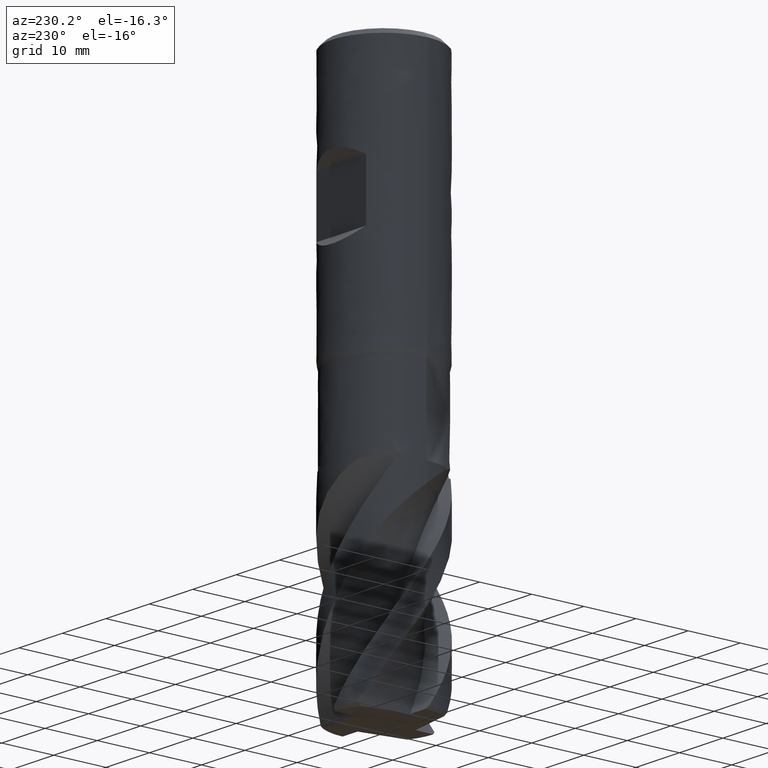
[diagram: clean part render]
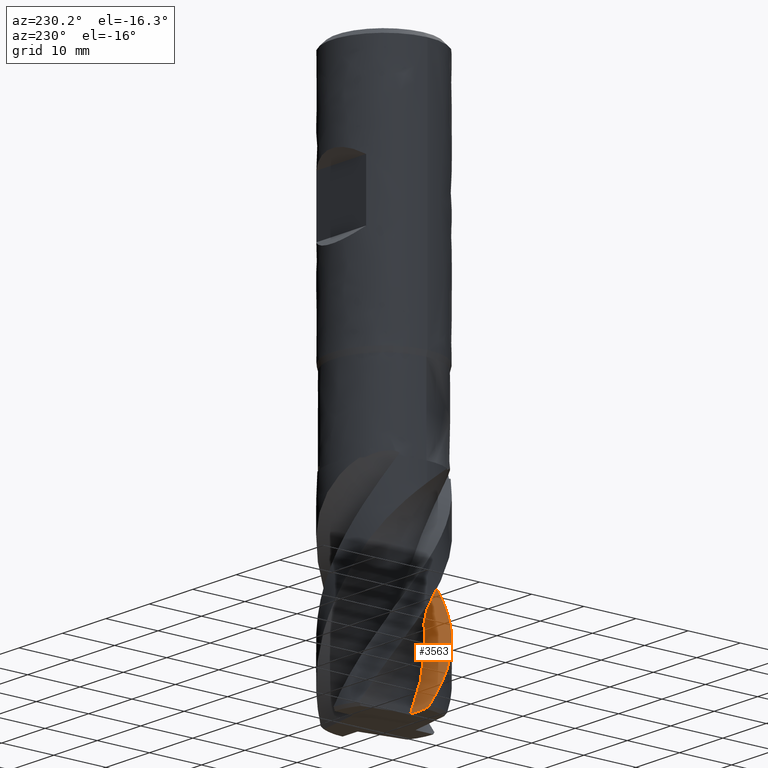
[diagram: same view with one face highlighted and labeled with its STEP entity id]
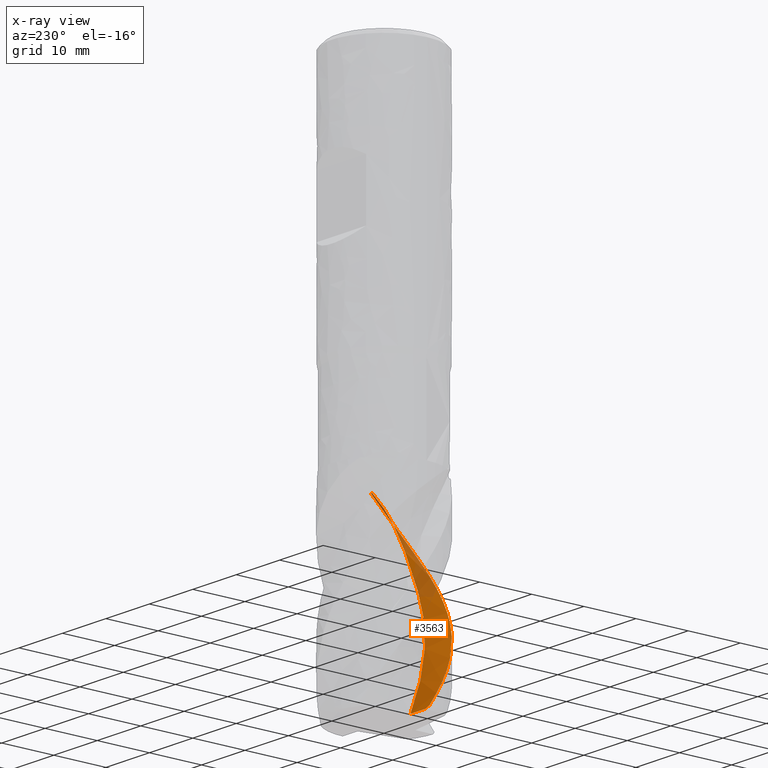
[diagram: x-ray of the same camera — body ghosted, the highlighted face saturated]
A machine part, auxiliary view. The second image highlights one B-rep face of the part: STEP entity #3563.
The next image is the same camera in x-ray: the body ghosted, the highlighted face saturated — about 20% of this face is hidden behind the body in this view.
In plain terms, the highlighted face is a freeform B-spline surface patch.
Its self-contained STEP definition (entity closure, byte-faithful):
#1973 = VERTEX_POINT('', #1974);
#1974 = CARTESIAN_POINT('', (8.75807935322569, -4.82659777095645, -66.));
#2043 = VERTEX_POINT('', #2044);
#2044 = CARTESIAN_POINT('', (8.24481654069184, -4.54373744884961, -66.));
#2050 = EDGE_CURVE('', #2043, #1973, #2051, .T.);
#2051 = LINE('', #2052, #2053);
#2052 = CARTESIAN_POINT('', (8.24481654069184, -4.54373744884961, -66.));
#2053 = VECTOR('', #2054, 0.58604494414042);
#2054 = DIRECTION('', (0.513262812533851, -0.282860322106846, 0.));
#2064 = EDGE_CURVE('', #2065, #1973, #2067, .T.);
#2065 = VERTEX_POINT('', #2066);
#2066 = CARTESIAN_POINT('', (-9.99273122246887, -0.381212165986003, -103.5));
#2067 = B_SPLINE_CURVE_WITH_KNOTS('', 3, (#2068, #2069, #2070, #2071, #2072, #2073, #2074, #2075, #2076, #2077, #2078, #2079, #2080, #2081, #2082, #2083, #2084, #2085, #2086, #2087, #2088, #2089, #2090, #2091, #2092, #2093, #2094, #2095, #2096, #2097, #2098, #2099, #2100, #2101, #2102, #2103, #2104, #2105, #2106, #2107, #2108, #2109, #2110, #2111, #2112, #2113, #2114, #2115, #2116, #2117, #2118, #2119, #2120, #2121, #2122, #2123, #2124, #2125, #2126, #2127, #2128, #2129, #2130, #2131, #2132, #2133, #2134, #2135, #2136, #2137, #2138, #2139, #2140, #2141, #2142, #2143, #2144, #2145, #2146, #2147, #2148, #2149, #2150, #2151, #2152, #2153, #2154, #2155, #2156, #2157, #2158, #2159, #2160, #2161, #2162, #2163, #2164, #2165, #2166, #2167, #2168, #2169, #2170, #2171, #2172, #2173, #2174, #2175, #2176, #2177, #2178, #2179, #2180, #2181, #2182, #2183, #2184, #2185, #2186, #2187, #2188, #2189, #2190, #2191, #2192, #2193, #2194, #2195, #2196, #2197, #2198, #2199, #2200, #2201, #2202, #2203, #2204, #2205, #2206, #2207, #2208, #2209, #2210, #2211, #2212, #2213, #2214, #2215, #2216, #2217, #2218, #2219, #2220, #2221, #2222, #2223, #2224, #2225, #2226, #2227, #2228, #2229, #2230, #2231, #2232, #2233, #2234, #2235, #2236, #2237, #2238, #2239), .UNSPECIFIED., .F., .U., (4, 3, 3, 3, 3, 3, 3, 3, 3, 3, 3, 3, 3, 3, 3, 3, 3, 3, 3, 3, 3, 3, 3, 3, 3, 3, 3, 3, 3, 3, 3, 3, 3, 3, 3, 3, 3, 3, 3, 3, 3, 3, 3, 3, 3, 3, 3, 3, 3, 3, 3, 3, 3, 3, 3, 3, 3, 4), (0., 1.5001938970399, 2.9998743749866, 4.49905475742761, 5.49770750414474, 6.49622074612984, 7.49459598662728, 8.49283549884522, 9.49094023268371, 10.4889117743659, 11.4867509465896, 12.4844588771655, 13.4820357447394, 14.4794818466203, 15.4767982398034, 16.4739827422443, 17.4710358254384, 18.1358123858625, 18.5790458597469, 19.5757821239086, 20.2404083912893, 21.2369224862458, 22.2332867542758, 23.2295110322367, 24.2256323112435, 25.221568793695, 25.8857991145401, 26.3287939679017, 26.7718309210119, 26.9031704834833, 27.3469670084974, 27.7907324079612, 28.2344483481404, 29.2338625427268, 29.6775540322148, 30.1212449151081, 31.120482271153, 31.7861601175668, 32.7850812661083, 33.7838565024265, 34.7824711915548, 35.4478980948708, 36.1132791624477, 36.7786120260139, 37.4439032928942, 38.1091490221567, 38.7743474531605, 39.4395054949006, 40.1046163156367, 40.769680915831, 41.4347063498659, 42.0996854451411, 42.764622271235, 43.4295220463284, 44.094368312011, 44.7591675688587, 45.4239289212548, 45.6286047567852), .UNSPECIFIED.);
#2068 = CARTESIAN_POINT('', (-9.99273122246888, -0.381212165986001, -103.5));
#2069 = CARTESIAN_POINT('', (-9.98187011040254, -0.6659149728215, -103.08903651677));
#2070 = CARTESIAN_POINT('', (-9.95882652936518, -0.950235794316247, -102.677950220319));
#2071 = CARTESIAN_POINT('', (-9.92369787495385, -1.23297221649103, -102.266987047104));
#2072 = CARTESIAN_POINT('', (-9.88858124280307, -1.5156118763221, -101.856164519934));
#2073 = CARTESIAN_POINT('', (-9.84136711242229, -1.7968337577352, -101.445220699274));
#2074 = CARTESIAN_POINT('', (-9.78225584084703, -2.07544469071455, -101.034397976449));
#2075 = CARTESIAN_POINT('', (-9.72316428099148, -2.35396271585288, -100.62371224987));
#2076 = CARTESIAN_POINT('', (-9.65214847773069, -2.63003691110683, -100.212905107744));
#2077 = CARTESIAN_POINT('', (-9.56950910534147, -2.90249814518237, -99.8022197307876));
#2078 = CARTESIAN_POINT('', (-9.51446033523343, -3.08399342284899, -99.5286488619733));
#2079 = CARTESIAN_POINT('', (-9.45423873593147, -3.26394558711793, -99.2550419580643));
#2080 = CARTESIAN_POINT('', (-9.38895749189167, -3.44201644613316, -98.9814710321316));
#2081 = CARTESIAN_POINT('', (-9.32368536718037, -3.62006242990767, -98.7079383221241));
#2082 = CARTESIAN_POINT('', (-9.25333788134955, -3.79627433708064, -98.4343697463546));
#2083 = CARTESIAN_POINT('', (-9.17804737976399, -3.97032067908969, -98.1608369745504));
#2084 = CARTESIAN_POINT('', (-9.10276728385037, -4.14434296668153, -97.8873420068813));
#2085 = CARTESIAN_POINT('', (-9.02252581558251, -4.31624591259249, -97.6138110159751));
#2086 = CARTESIAN_POINT('', (-8.9374736079491, -4.48570680129824, -97.3403160874379));
#2087 = CARTESIAN_POINT('', (-8.85243296309222, -4.65514465193781, -97.0668583403077));
#2088 = CARTESIAN_POINT('', (-8.76256062864426, -4.8221854301996, -96.7933647961833));
#2089 = CARTESIAN_POINT('', (-8.66802559588746, -4.98651504249609, -96.5199070442787));
#2090 = CARTESIAN_POINT('', (-8.57350332687959, -5.15082246765356, -96.246486213566));
#2091 = CARTESIAN_POINT('', (-8.4742948242878, -5.31246257889582, -95.9730294587141));
#2092 = CARTESIAN_POINT('', (-8.37058631650313, -5.47113194119558, -95.6996086861888));
#2093 = CARTESIAN_POINT('', (-8.26689164810756, -5.62978012985115, -95.4262244003177));
#2094 = CARTESIAN_POINT('', (-8.15867108426632, -5.7854997963694, -95.1528042599496));
#2095 = CARTESIAN_POINT('', (-8.0461279915139, -5.9379983449119, -94.8794198332813));
#2096 = CARTESIAN_POINT('', (-7.93359982630963, -6.09047666627412, -94.606071667916));
#2097 = CARTESIAN_POINT('', (-7.81672073179948, -6.23977477843776, -94.3326876077699));
#2098 = CARTESIAN_POINT('', (-7.6957099448647, -6.38561261309442, -94.05933954872));
#2099 = CARTESIAN_POINT('', (-7.57471507397682, -6.53143126630554, -93.7860274420067));
#2100 = CARTESIAN_POINT('', (-7.44955801467691, -6.67382860271252, -93.5126795460522));
#2101 = CARTESIAN_POINT('', (-7.3204737675505, -6.81253725263979, -93.2393674283905));
#2102 = CARTESIAN_POINT('', (-7.19140647745973, -6.95122768123043, -92.9660912141285));
#2103 = CARTESIAN_POINT('', (-7.05837912382122, -7.0862668274403, -92.692779252469));
#2104 = CARTESIAN_POINT('', (-6.92164145335852, -7.21740116601182, -92.4195030472128));
#2105 = CARTESIAN_POINT('', (-6.78492170692434, -7.3485183150582, -92.1462626639103));
#2106 = CARTESIAN_POINT('', (-6.64445698266512, -7.47576587394979, -91.8729862856165));
#2107 = CARTESIAN_POINT('', (-6.50051037067061, -7.59890550808495, -91.5997459037057));
#2108 = CARTESIAN_POINT('', (-6.35658247760994, -7.72202912904249, -91.3265410541952));
#2109 = CARTESIAN_POINT('', (-6.20913551709407, -7.84107843747769, -91.0533009823612));
#2110 = CARTESIAN_POINT('', (-6.05844670328949, -7.95582953207273, -90.7800966231023));
#2111 = CARTESIAN_POINT('', (-5.90777781742318, -8.07056545133611, -90.5069283939281));
#2112 = CARTESIAN_POINT('', (-5.75382865754208, -8.1810341492072, -90.2337241786196));
#2113 = CARTESIAN_POINT('', (-5.59689072281261, -8.28702686353158, -89.9605532524203));
#2114 = CARTESIAN_POINT('', (-5.43997347098095, -8.39300560904413, -89.6874183274999));
#2115 = CARTESIAN_POINT('', (-5.28002782108504, -8.49453711294139, -89.414244742144));
#2116 = CARTESIAN_POINT('', (-5.1173464197838, -8.59143559714707, -89.1411098833958));
#2117 = CARTESIAN_POINT('', (-5.00887999585427, -8.65604182737323, -88.9589995675149));
#2118 = CARTESIAN_POINT('', (-4.8991817897135, -8.71859845683831, -88.7768800913627));
#2119 = CARTESIAN_POINT('', (-4.78833857433149, -8.77905539893495, -88.5947761731993));
#2120 = CARTESIAN_POINT('', (-4.71443491055167, -8.81936449233744, -88.4733601109301));
#2121 = CARTESIAN_POINT('', (-4.64001632529938, -8.85874347881304, -88.3519440302105));
#2122 = CARTESIAN_POINT('', (-4.56511329202039, -8.89717599190995, -88.2305318716323));
#2123 = CARTESIAN_POINT('', (-4.39667256277991, -8.98360240549022, -87.9575021739777));
#2124 = CARTESIAN_POINT('', (-4.22576031910592, -9.06525110959404, -87.684432004459));
#2125 = CARTESIAN_POINT('', (-4.05271875871044, -9.14196207948799, -87.4113769449808));
#2126 = CARTESIAN_POINT('', (-3.93733420762852, -9.19311314865336, -87.2293031392053));
#2127 = CARTESIAN_POINT('', (-3.82098477926707, -9.2420779037201, -87.0472109123807));
#2128 = CARTESIAN_POINT('', (-3.70375166272943, -9.28882250992174, -86.8651333590343));
#2129 = CARTESIAN_POINT('', (-3.52797700746963, -9.35890950652317, -86.5921335436643));
#2130 = CARTESIAN_POINT('', (-3.35017183783183, -9.42402080062988, -86.3191108523517));
#2131 = CARTESIAN_POINT('', (-3.17067698809457, -9.48402907192757, -86.0461302266472));
#2132 = CARTESIAN_POINT('', (-2.99120912559393, -9.54402832091951, -85.7731906438626));
#2133 = CARTESIAN_POINT('', (-2.8100060437996, -9.59894112192461, -85.5002210868297));
#2134 = CARTESIAN_POINT('', (-2.62743307202509, -9.64865770208627, -85.2272741853356));
#2135 = CARTESIAN_POINT('', (-2.44488575191609, -9.69836729702404, -84.9543656331248));
#2136 = CARTESIAN_POINT('', (-2.2609179289437, -9.74289711259459, -84.6814109802502));
#2137 = CARTESIAN_POINT('', (-2.07584601200978, -9.78217068622415, -84.4085014389102));
#2138 = CARTESIAN_POINT('', (-1.89079322953614, -9.82144019938549, -84.135620113503));
#2139 = CARTESIAN_POINT('', (-1.70458498029373, -9.85546533151179, -83.8627148261836));
#2140 = CARTESIAN_POINT('', (-1.51754958450637, -9.88418146629069, -83.5898705683236));
#2141 = CARTESIAN_POINT('', (-1.33054888680006, -9.91289227376367, -83.3170769274719));
#2142 = CARTESIAN_POINT('', (-1.1426872519475, -9.93629917091783, -83.0442624804047));
#2143 = CARTESIAN_POINT('', (-0.954406890301328, -9.95435118366563, -82.7714354799966));
#2144 = CARTESIAN_POINT('', (-0.828835102111357, -9.96639080108164, -82.5894761189235));
#2145 = CARTESIAN_POINT('', (-0.703058995916467, -9.97605127959484, -82.4074847189199));
#2146 = CARTESIAN_POINT('', (-0.577209322011064, -9.98332757143546, -82.2254645260461));
#2147 = CARTESIAN_POINT('', (-0.493276451005719, -9.9881803457455, -82.1040698740398));
#2148 = CARTESIAN_POINT('', (-0.409309333992039, -9.99197336499974, -81.9826519122623));
#2149 = CARTESIAN_POINT('', (-0.325295163266469, -9.99470775244356, -81.861247299368));
#2150 = CARTESIAN_POINT('', (-0.241273008304873, -9.99744239974823, -81.7398311488595));
#2151 = CARTESIAN_POINT('', (-0.157198593194564, -9.9991181909217, -81.618422668708));
#2152 = CARTESIAN_POINT('', (-0.073081913532351, -9.99973294812988, -81.4970427333779));
#2153 = CARTESIAN_POINT('', (-0.048145285050629, -9.99991519464946, -81.4610593069681));
#2154 = CARTESIAN_POINT('', (-0.0232048666533307, -10.0000041856459, -81.4250779134358));
#2155 = CARTESIAN_POINT('', (0.00173864458909561, -9.99999984885575, -81.3890987964635));
#2156 = CARTESIAN_POINT('', (0.0860227963156528, -9.99998519483709, -81.2675253209245));
#2157 = CARTESIAN_POINT('', (0.170347092871053, -9.99890476216976, -81.1459751182408));
#2158 = CARTESIAN_POINT('', (0.254667676294169, -9.99675669278045, -81.0244458896136));
#2159 = CARTESIAN_POINT('', (0.338982345915747, -9.99460877404542, -80.9029251844064));
#2160 = CARTESIAN_POINT('', (0.423297672962246, -9.99139303662583, -80.7814191244146));
#2161 = CARTESIAN_POINT('', (0.507543753566425, -9.98711166144725, -80.659907287165));
#2162 = CARTESIAN_POINT('', (0.591780444635337, -9.98283076344365, -80.5384089928562));
#2163 = CARTESIAN_POINT('', (0.675945362661602, -9.97748490270449, -80.4168937808918));
#2164 = CARTESIAN_POINT('', (0.760005256334635, -9.97107777576444, -80.2953665628295));
#2165 = CARTESIAN_POINT('', (0.94933956534847, -9.95664653038746, -80.0216418309414));
#2166 = CARTESIAN_POINT('', (1.13817248089154, -9.93682853879008, -79.7478010585479));
#2167 = CARTESIAN_POINT('', (1.32622790804685, -9.9116658305211, -79.47397088364));
#2168 = CARTESIAN_POINT('', (1.40971540805716, -9.90049480696361, -79.3524035506666));
#2169 = CARTESIAN_POINT('', (1.49305818737369, -9.88826943823007, -79.2308290567184));
#2170 = CARTESIAN_POINT('', (1.57623841866097, -9.87499227582164, -79.1092628732917));
#2171 = CARTESIAN_POINT('', (1.65941853622803, -9.86171513156514, -78.9876968560647));
#2172 = CARTESIAN_POINT('', (1.74244245297298, -9.84738506172949, -78.8661342955399));
#2173 = CARTESIAN_POINT('', (1.82527823942228, -9.83200688306774, -78.7445807881167));
#2174 = CARTESIAN_POINT('', (2.0118329229392, -9.79737364813051, -78.4708298275751));
#2175 = CARTESIAN_POINT('', (2.19746802553245, -9.75741548189679, -78.1970725748543));
#2176 = CARTESIAN_POINT('', (2.38180210729104, -9.71220977541695, -77.923359057275));
#2177 = CARTESIAN_POINT('', (2.50460287512003, -9.68209437075051, -77.7410149687416));
#2178 = CARTESIAN_POINT('', (2.62684353852648, -9.649646569276, -77.5586631234596));
#2179 = CARTESIAN_POINT('', (2.74840978721158, -9.61489696468763, -77.3763160780701));
#2180 = CARTESIAN_POINT('', (2.93083300801516, -9.56275144848371, -77.102684739736));
#2181 = CARTESIAN_POINT('', (3.11177844998541, -9.50541014517109, -76.8290051407583));
#2182 = CARTESIAN_POINT('', (3.29091442910461, -9.44298057926158, -76.5553550979072));
#2183 = CARTESIAN_POINT('', (3.47002424186522, -9.38056013242697, -76.2817450270661));
#2184 = CARTESIAN_POINT('', (3.64737518223181, -9.3130356555425, -76.0080947889057));
#2185 = CARTESIAN_POINT('', (3.82265032938585, -9.24052728253353, -75.7344887460091));
#2186 = CARTESIAN_POINT('', (3.99789730210054, -9.16803056481505, -75.4609266836596));
#2187 = CARTESIAN_POINT('', (4.17110779056313, -9.09053508422157, -75.1873315758993));
#2188 = CARTESIAN_POINT('', (4.34195092680832, -9.00818861643052, -74.9137714188538));
#2189 = CARTESIAN_POINT('', (4.45579225153753, -8.9533170471879, -74.7314846067778));
#2190 = CARTESIAN_POINT('', (4.56859975873658, -8.89628391094962, -74.5491870890211));
#2191 = CARTESIAN_POINT('', (4.68028094816908, -8.8371358621561, -74.3669014932244));
#2192 = CARTESIAN_POINT('', (4.79195444481093, -8.77799188758098, -74.1846284535703));
#2193 = CARTESIAN_POINT('', (4.90251432905173, -8.71672656215691, -74.0023457366704));
#2194 = CARTESIAN_POINT('', (5.0118649586482, -8.65339295515199, -73.8200719464642));
#2195 = CARTESIAN_POINT('', (5.12120766625955, -8.59006393639586, -73.637811361214));
#2196 = CARTESIAN_POINT('', (5.22935417423093, -8.52465955329714, -73.455538530709));
#2197 = CARTESIAN_POINT('', (5.33621552916695, -8.45723381646017, -73.2732757147169));
#2198 = CARTESIAN_POINT('', (5.44307020311897, -8.38981229508789, -73.0910242938167));
#2199 = CARTESIAN_POINT('', (5.54865268631191, -8.32036163418252, -72.908761908239));
#2200 = CARTESIAN_POINT('', (5.65287812316294, -8.24893744215979, -72.7265126108005));
#2201 = CARTESIAN_POINT('', (5.75709642602867, -8.17751813895453, -72.5442757878966));
#2202 = CARTESIAN_POINT('', (5.85996841668442, -8.10411822624975, -72.3620295142679));
#2203 = CARTESIAN_POINT('', (5.96140516141372, -8.02880118706832, -72.1797924116452));
#2204 = CARTESIAN_POINT('', (6.06283469409915, -7.95348950284769, -71.9975682658852));
#2205 = CARTESIAN_POINT('', (6.16284114039402, -7.87625217647624, -71.8153321333772));
#2206 = CARTESIAN_POINT('', (6.26134257049684, -7.79715263508955, -71.6331065314465));
#2207 = CARTESIAN_POINT('', (6.35983801982751, -7.71805789643856, -71.4508919938201));
#2208 = CARTESIAN_POINT('', (6.45684094539997, -7.63709129284905, -71.2686674873394));
#2209 = CARTESIAN_POINT('', (6.55227208358305, -7.55431866833125, -71.0864559085662));
#2210 = CARTESIAN_POINT('', (6.64769644690382, -7.47155192002058, -70.904257265386));
#2211 = CARTESIAN_POINT('', (6.74155837438776, -7.38697138790687, -70.7220485409803));
#2212 = CARTESIAN_POINT('', (6.83377688946649, -7.30065020563193, -70.5398484084745));
#2213 = CARTESIAN_POINT('', (6.92598899600457, -7.21433502207433, -70.3576609376012));
#2214 = CARTESIAN_POINT('', (7.01656879802018, -7.12626935130381, -70.1754609145592));
#2215 = CARTESIAN_POINT('', (7.10544254720087, -7.03652515155226, -69.9932711965027));
#2216 = CARTESIAN_POINT('', (7.19431106253895, -6.94678623690481, -69.8110922077372));
#2217 = CARTESIAN_POINT('', (7.28148521949005, -6.85535735618799, -69.628903441534));
#2218 = CARTESIAN_POINT('', (7.36689269166946, -6.76231410609025, -69.4467266398404));
#2219 = CARTESIAN_POINT('', (7.45229421268351, -6.66927733921642, -69.2645625321681));
#2220 = CARTESIAN_POINT('', (7.53593776353224, -6.57461716605448, -69.0823876772638));
#2221 = CARTESIAN_POINT('', (7.61775285732957, -6.47841349441722, -68.9002224613296));
#2222 = CARTESIAN_POINT('', (7.69956275057689, -6.38221593793527, -68.7180688246686));
#2223 = CARTESIAN_POINT('', (7.77955407773118, -6.284463835221, -68.5359036948799));
#2224 = CARTESIAN_POINT('', (7.85766295554138, -6.18523507048137, -68.3537514747161));
#2225 = CARTESIAN_POINT('', (7.93576748104027, -6.08601183487603, -68.1716094042715));
#2226 = CARTESIAN_POINT('', (8.01200078461092, -5.98529790088702, -67.9894612978289));
#2227 = CARTESIAN_POINT('', (8.0862956863762, -5.88318128842666, -67.8073246286913));
#2228 = CARTESIAN_POINT('', (8.16058460908032, -5.78107289404663, -67.6252026174407));
#2229 = CARTESIAN_POINT('', (8.23294262544957, -5.67755216490631, -67.4430691166411));
#2230 = CARTESIAN_POINT('', (8.30330647352767, -5.57271043628443, -67.2609413152363));
#2231 = CARTESIAN_POINT('', (8.37366534643681, -5.46787612063567, -67.0788263914186));
#2232 = CARTESIAN_POINT('', (8.4420386641174, -5.36170874574087, -66.8966960491981));
#2233 = CARTESIAN_POINT('', (8.5083708579251, -5.25429589421939, -66.7145725482313));
#2234 = CARTESIAN_POINT('', (8.57469926971078, -5.14688916699063, -66.5324594312885));
#2235 = CARTESIAN_POINT('', (8.63899462704439, -5.03822454772498, -66.3503320427392));
#2236 = CARTESIAN_POINT('', (8.7012071088306, -4.92838663755552, -66.168216444214));
#2237 = CARTESIAN_POINT('', (8.72036194032631, -4.89456823647699, -66.1121441979004));
#2238 = CARTESIAN_POINT('', (8.73931981168515, -4.86063780520809, -66.0560717780806));
#2239 = CARTESIAN_POINT('', (8.75807935322569, -4.82659777095646, -66.));
#2268 = EDGE_CURVE('', #2269, #2065, #2271, .T.);
#2269 = VERTEX_POINT('', #2270);
#2270 = CARTESIAN_POINT('', (-9.49994292245991, -0.0329312921690263, -104.));
#2271 = B_SPLINE_CURVE_WITH_KNOTS('', 3, (#2272, #2273, #2274, #2275), .UNSPECIFIED., .F., .U., (4, 4), (0., 0.783670769961745), .UNSPECIFIED.);
#2272 = CARTESIAN_POINT('', (-9.49994292245991, -0.0329312921690206, -104.));
#2273 = CARTESIAN_POINT('', (-9.66700418012524, -0.143794365409599, -103.832555444565));
#2274 = CARTESIAN_POINT('', (-9.8313789306082, -0.259989500001823, -103.665856163976));
#2275 = CARTESIAN_POINT('', (-9.99273122246888, -0.381212165985997, -103.5));
#2296 = EDGE_CURVE('', #2297, #2269, #2299, .T.);
#2297 = VERTEX_POINT('', #2298);
#2298 = CARTESIAN_POINT('', (-6.05980952317125, -0.0210061638817195, -104.));
#2299 = LINE('', #2300, #2301);
#2300 = CARTESIAN_POINT('', (-6.05980952317125, -0.0210061638817195, -104.));
#2301 = VECTOR('', #2302, 3.44015406829201);
#2302 = DIRECTION('', (-3.44013339928866, -0.0119251282873012, 1.4210854715202E-14));
#2581 = EDGE_CURVE('', #2297, #2043, #2582, .T.);
#2582 = B_SPLINE_CURVE_WITH_KNOTS('', 3, (#2583, #2584, #2585, #2586, #2587, #2588, #2589, #2590, #2591, #2592, #2593, #2594, #2595, #2596, #2597, #2598, #2599, #2600, #2601, #2602, #2603, #2604, #2605, #2606, #2607, #2608), .UNSPECIFIED., .F., .U., (4, 1, 1, 1, 1, 1, 1, 1, 1, 1, 1, 1, 1, 1, 1, 1, 1, 1, 1, 1, 1, 1, 1, 4), (0.0499999999999996, 3.124, 4.686, 6.248, 7.81, 9.372, 10.934, 12.496, 14.058, 15.62, 17.182, 18.744, 20.306, 21.868, 23.43, 24.992, 26.554, 28.116, 29.678, 31.24, 32.802, 34.364, 35.926, 38.05), .UNSPECIFIED.);
#2583 = CARTESIAN_POINT('', (-6.05980952317125, -0.0210061638817157, -104.));
#2584 = CARTESIAN_POINT('', (-6.05516728982624, -0.451478921269691, -102.975333333333));
#2585 = CARTESIAN_POINT('', (-5.97968307938365, -1.09935672825959, -101.43));
#2586 = CARTESIAN_POINT('', (-5.74506389234829, -1.93499733724723, -99.364));
#2587 = CARTESIAN_POINT('', (-5.50162236334445, -2.54422500359818, -97.802));
#2588 = CARTESIAN_POINT('', (-5.19483514754468, -3.12412444108722, -96.24));
#2589 = CARTESIAN_POINT('', (-4.82810837840586, -3.66824456030731, -94.678));
#2590 = CARTESIAN_POINT('', (-4.40548017147386, -4.17050613968465, -93.116));
#2591 = CARTESIAN_POINT('', (-3.93161951667553, -4.62530372034134, -91.554));
#2592 = CARTESIAN_POINT('', (-3.41164718816435, -5.02741938781424, -89.992));
#2593 = CARTESIAN_POINT('', (-2.85157204005347, -5.37261513881706, -88.43));
#2594 = CARTESIAN_POINT('', (-2.25641080543849, -5.6556703882267, -86.868));
#2595 = CARTESIAN_POINT('', (-1.6288917266653, -5.85778492249725, -85.306));
#2596 = CARTESIAN_POINT('', (-0.982432836130103, -5.97804394589136, -83.744));
#2597 = CARTESIAN_POINT('', (-0.327622832683393, -6.0143187648056, -82.182));
#2598 = CARTESIAN_POINT('', (0.320183963239841, -5.96505771265827, -80.62));
#2599 = CARTESIAN_POINT('', (0.966344318816843, -5.93773006534497, -79.058));
#2600 = CARTESIAN_POINT('', (1.6312431577963, -5.91226307926383, -77.496));
#2601 = CARTESIAN_POINT('', (2.33066014168337, -5.88528136029755, -75.934));
#2602 = CARTESIAN_POINT('', (3.07928433564887, -5.84342040346165, -74.372));
#2603 = CARTESIAN_POINT('', (3.88873048805124, -5.77096522685263, -72.81));
#2604 = CARTESIAN_POINT('', (4.76710713012934, -5.6484643731903, -71.248));
#2605 = CARTESIAN_POINT('', (5.71832667276983, -5.45391114762649, -69.686));
#2606 = CARTESIAN_POINT('', (6.86417230553522, -5.12855741870001, -67.9366666666667));
#2607 = CARTESIAN_POINT('', (7.7304629707723, -4.78778915362056, -66.708));
#2608 = CARTESIAN_POINT('', (8.24481654069184, -4.54373744884961, -66.));
#3563 = ADVANCED_FACE('', (#3564), #3571, .T.);
#3564 = FACE_OUTER_BOUND('', #3565, .T.);
#3565 = EDGE_LOOP('', (#3566, #3567, #3568, #3569, #3570));
#3566 = ORIENTED_EDGE('', *, *, #2050, .F.);
#3567 = ORIENTED_EDGE('', *, *, #2581, .F.);
#3568 = ORIENTED_EDGE('', *, *, #2296, .T.);
#3569 = ORIENTED_EDGE('', *, *, #2268, .T.);
#3570 = ORIENTED_EDGE('', *, *, #2064, .T.);
#3571 = B_SPLINE_SURFACE_WITH_KNOTS('', 3, 1, ((#3572, #3573), (#3574, #3575), (#3576, #3577), (#3578, #3579), (#3580, #3581), (#3582, #3583), (#3584, #3585), (#3586, #3587), (#3588, #3589), (#3590, #3591), (#3592, #3593), (#3594, #3595), (#3596, #3597), (#3598, #3599), (#3600, #3601), (#3602, #3603), (#3604, #3605), (#3606, #3607), (#3608, #3609), (#3610, #3611), (#3612, #3613), (#3614, #3615), (#3616, #3617), (#3618, #3619), (#3620, #3621), (#3622, #3623)), .UNSPECIFIED., .F., .F., .U., (4, 1, 1, 1, 1, 1, 1, 1, 1, 1, 1, 1, 1, 1, 1, 1, 1, 1, 1, 1, 1, 1, 1, 4), (2, 2), (0.049999999999993, 3.124, 4.686, 6.248, 7.81, 9.372, 10.934, 12.496, 14.058, 15.62, 17.182, 18.744, 20.306, 21.868, 23.43, 24.992, 26.554, 28.116, 29.678, 31.24, 32.802, 34.364, 35.926, 38.0500000000001), (0.192284066932546, 1.), .UNSPECIFIED.);
#3572 = CARTESIAN_POINT('', (-10.138646775854, -0.0351453415982885, -104.));
#3573 = CARTESIAN_POINT('', (-6.05980952317125, -0.0210061638817129, -104.));
#3574 = CARTESIAN_POINT('', (-10.1308798709775, -0.755367853064389, -102.975333333333));
#3575 = CARTESIAN_POINT('', (-6.05516728982624, -0.451478921269689, -102.975333333333));
#3576 = CARTESIAN_POINT('', (-10.0045874943104, -1.83933001620974, -101.43));
#3577 = CARTESIAN_POINT('', (-5.97968307938365, -1.09935672825959, -101.43));
#3578 = CARTESIAN_POINT('', (-9.61204692763182, -3.23743748702864, -99.364));
#3579 = CARTESIAN_POINT('', (-5.74506389234829, -1.93499733724723, -99.364));
#3580 = CARTESIAN_POINT('', (-9.20474573050573, -4.25673423086056, -97.802));
#3581 = CARTESIAN_POINT('', (-5.50162236334445, -2.54422500359818, -97.802));
#3582 = CARTESIAN_POINT('', (-8.69146107948689, -5.22696201438022, -96.24));
#3583 = CARTESIAN_POINT('', (-5.19483514754468, -3.12412444108722, -96.24));
#3584 = CARTESIAN_POINT('', (-8.07789176491826, -6.13732754176418, -94.678));
#3585 = CARTESIAN_POINT('', (-4.82810837840586, -3.66824456030731, -94.678));
#3586 = CARTESIAN_POINT('', (-7.37079394423401, -6.97765968800043, -93.116));
#3587 = CARTESIAN_POINT('', (-4.40548017147386, -4.17050613968465, -93.116));
#3588 = CARTESIAN_POINT('', (-6.57797928865702, -7.73857997883791, -91.554));
#3589 = CARTESIAN_POINT('', (-3.93161951667553, -4.62530372034134, -91.554));
#3590 = CARTESIAN_POINT('', (-5.70801534806862, -8.4113583392724, -89.992));
#3591 = CARTESIAN_POINT('', (-3.41164718816435, -5.02741938781424, -89.992));
#3592 = CARTESIAN_POINT('', (-4.77095551592084, -8.98890418036868, -88.43));
#3593 = CARTESIAN_POINT('', (-2.85157204005347, -5.37261513881706, -88.43));
#3594 = CARTESIAN_POINT('', (-3.77519327135369, -9.46248295885045, -86.868));
#3595 = CARTESIAN_POINT('', (-2.25641080543849, -5.6556703882267, -86.868));
#3596 = CARTESIAN_POINT('', (-2.72529322738973, -9.80064010115002, -85.306));
#3597 = CARTESIAN_POINT('', (-1.6288917266653, -5.85778492249725, -85.306));
#3598 = CARTESIAN_POINT('', (-1.64370504855588, -10.0018450656196, -83.744));
#3599 = CARTESIAN_POINT('', (-0.982432836130103, -5.97804394589136, -83.744));
#3600 = CARTESIAN_POINT('', (-0.548144651012617, -10.0625363422056, -82.182));
#3601 = CARTESIAN_POINT('', (-0.327622832683393, -6.0143187648056, -82.182));
#3602 = CARTESIAN_POINT('', (0.535698703757762, -9.98011784280909, -80.62));
#3603 = CARTESIAN_POINT('', (0.320183963239841, -5.96505771265827, -80.62));
#3604 = CARTESIAN_POINT('', (1.61678740476483, -9.93439604870562, -79.058));
#3605 = CARTESIAN_POINT('', (0.966344318816843, -5.93773006534497, -79.058));
#3606 = CARTESIAN_POINT('', (2.72922739884575, -9.8917873206037, -77.496));
#3607 = CARTESIAN_POINT('', (1.6312431577963, -5.91226307926383, -77.496));
#3608 = CARTESIAN_POINT('', (3.89941958418579, -9.84664429804524, -75.934));
#3609 = CARTESIAN_POINT('', (2.33066014168337, -5.88528136029755, -75.934));
#3610 = CARTESIAN_POINT('', (5.15194018593939, -9.77660687303451, -74.372));
#3611 = CARTESIAN_POINT('', (3.07928433564887, -5.84342040346165, -74.372));
#3612 = CARTESIAN_POINT('', (6.50622180022138, -9.65538236260855, -72.81));
#3613 = CARTESIAN_POINT('', (3.88873048805124, -5.77096522685263, -72.81));
#3614 = CARTESIAN_POINT('', (7.97583078316679, -9.45042659951504, -71.248));
#3615 = CARTESIAN_POINT('', (4.76710713012934, -5.6484643731903, -71.248));
#3616 = CARTESIAN_POINT('', (9.56731297617049, -9.1249202571866, -69.686));
#3617 = CARTESIAN_POINT('', (5.71832667276983, -5.45391114762649, -69.686));
#3618 = CARTESIAN_POINT('', (11.4844234209529, -8.58057203597942, -67.9366666666666));
#3619 = CARTESIAN_POINT('', (6.86417230553525, -5.12855741870001, -67.9366666666666));
#3620 = CARTESIAN_POINT('', (12.9338113970064, -8.01043380657625, -66.7079999999999));
#3621 = CARTESIAN_POINT('', (7.73046297077236, -4.78778915362054, -66.7079999999999));
#3622 = CARTESIAN_POINT('', (13.7943746116377, -7.60211172644212, -65.9999999999999));
#3623 = CARTESIAN_POINT('', (8.24481654069193, -4.54373744884957, -65.9999999999999));